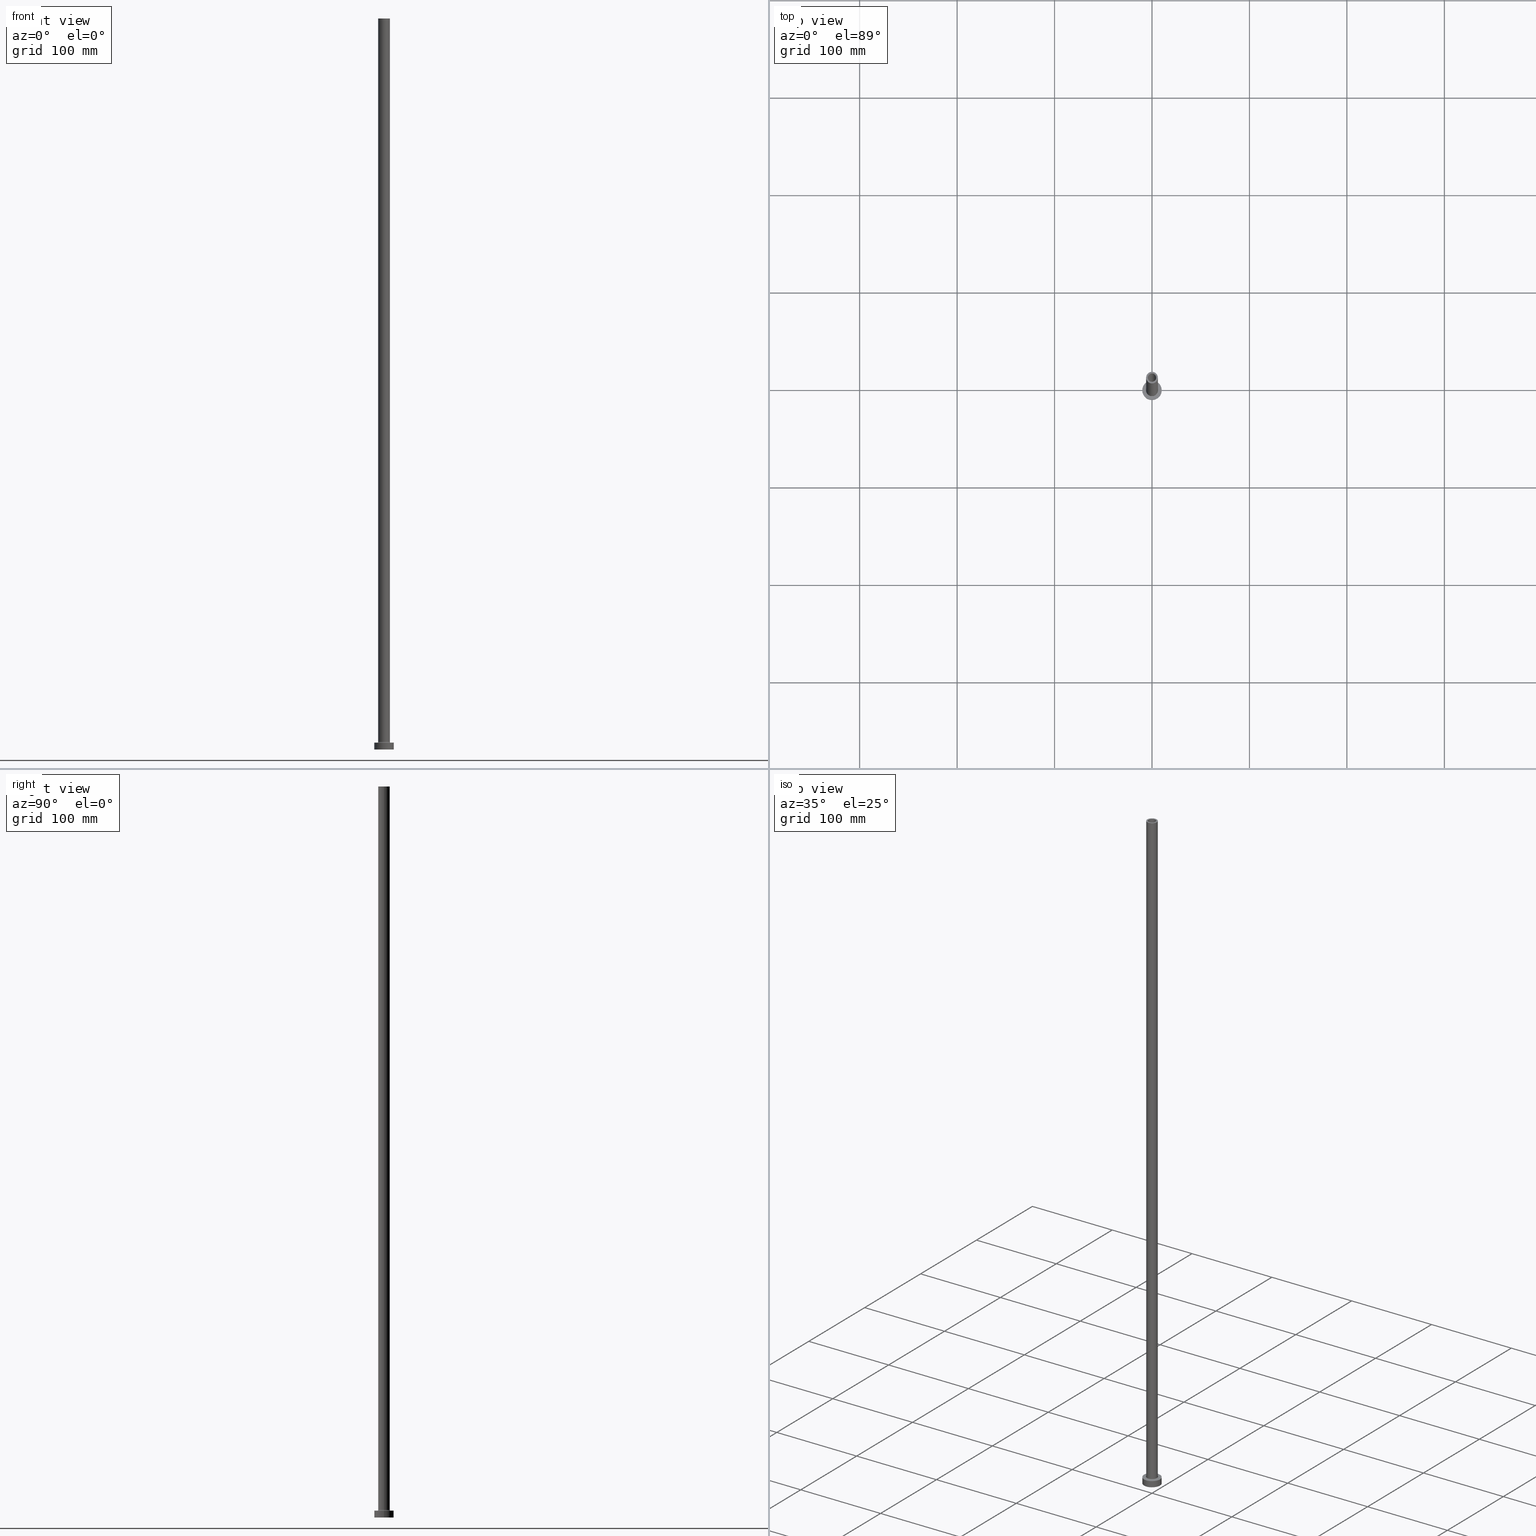
[diagram: canonical four-view strip — front | top / right | iso, engineering-drawing reading convention]
A machine part, canonical four-view strip (front | top / right | iso — engineering-drawing reading convention). The complete STEP part file that produces these views, byte-faithful:
ISO-10303-21;
HEADER;
FILE_DESCRIPTION (( 'STEP AP203' ),
    '1' );
FILE_NAME ('cd4d.STEP',
    '2023-02-13T11:54:27',
    ( '' ),
    ( '' ),
    'SwSTEP 2.0',
    'SolidWorks 2019',
    '' );
FILE_SCHEMA (( 'CONFIG_CONTROL_DESIGN' ));
ENDSEC;

DATA;
#1 = PLANE ( 'NONE',  #199 ) ;
#2 = VECTOR ( 'NONE', #316, 1000.000000000000000 ) ;
#3 = COORDINATED_UNIVERSAL_TIME_OFFSET ( 1, 0, .AHEAD. ) ;
#4 = APPROVAL ( #367, 'NEUR�EN�' ) ;
#5 = ADVANCED_FACE ( 'NONE', ( #47, #359 ), #1, .F. ) ;
#6 = ORIENTED_EDGE ( 'NONE', *, *, #348, .F. ) ;
#7 = ORIENTED_EDGE ( 'NONE', *, *, #178, .F. ) ;
#8 = CYLINDRICAL_SURFACE ( 'NONE', #19, 4.400000000000000355 ) ;
#9 = AXIS2_PLACEMENT_3D ( 'NONE', #429, #134, #90 ) ;
#10 = AXIS2_PLACEMENT_3D ( 'NONE', #300, #272, #407 ) ;
#11 = CARTESIAN_POINT ( 'NONE',  ( -4.250000000000000000, 0.000000000000000000, 705.0000000000000000 ) ) ;
#12 = CC_DESIGN_DATE_AND_TIME_ASSIGNMENT ( #161, #121, ( #200 ) ) ;
#13 = COORDINATED_UNIVERSAL_TIME_OFFSET ( 1, 0, .AHEAD. ) ;
#14 = DIRECTION ( 'NONE',  ( -0.000000000000000000, -0.000000000000000000, -1.000000000000000000 ) ) ;
#15 = VERTEX_POINT ( 'NONE', #293 ) ;
#16 = DIRECTION ( 'NONE',  ( 0.000000000000000000, 0.000000000000000000, 1.000000000000000000 ) ) ;
#17 = EDGE_LOOP ( 'NONE', ( #271, #255 ) ) ;
#18 = CARTESIAN_POINT ( 'NONE',  ( -6.000000000000000888, 0.000000000000000000, 750.0000000000000000 ) ) ;
#19 = AXIS2_PLACEMENT_3D ( 'NONE', #126, #373, #404 ) ;
#20 = DIRECTION ( 'NONE',  ( 0.000000000000000000, 0.000000000000000000, 1.000000000000000000 ) ) ;
#21 = EDGE_CURVE ( 'NONE', #133, #171, #378, .T. ) ;
#22 = ORIENTED_EDGE ( 'NONE', *, *, #250, .T. ) ;
#23 = CYLINDRICAL_SURFACE ( 'NONE', #440, 4.250000000000000000 ) ;
#24 = ORIENTED_EDGE ( 'NONE', *, *, #421, .T. ) ;
#25 =( NAMED_UNIT ( * ) SI_UNIT ( $, .STERADIAN. ) SOLID_ANGLE_UNIT ( ) );
#26 = CARTESIAN_POINT ( 'NONE',  ( 10.00000000000000000, 1.224646799147353256E-15, 0.000000000000000000 ) ) ;
#27 = EDGE_CURVE ( 'NONE', #445, #299, #220, .T. ) ;
#28 = CIRCLE ( 'NONE', #61, 0.7000000000000000666 ) ;
#29 = DIRECTION ( 'NONE',  ( 0.000000000000000000, 0.000000000000000000, -1.000000000000000000 ) ) ;
#30 = DIRECTION ( 'NONE',  ( 0.000000000000000000, 0.000000000000000000, -1.000000000000000000 ) ) ;
#31 = ADVANCED_FACE ( 'NONE', ( #194 ), #335, .T. ) ;
#32 = CARTESIAN_POINT ( 'NONE',  ( 4.400000000000000355, 5.388445916248353027E-16, 717.4450793488832687 ) ) ;
#33 = ADVANCED_BREP_SHAPE_REPRESENTATION ( 'cd4d', ( #95, #66 ), #138 ) ;
#34 = FACE_OUTER_BOUND ( 'NONE', #228, .T. ) ;
#35 = DIRECTION ( 'NONE',  ( 0.000000000000000000, 0.000000000000000000, -1.000000000000000000 ) ) ;
#36 = ORIENTED_EDGE ( 'NONE', *, *, #67, .F. ) ;
#37 = PERSON_AND_ORGANIZATION ( #119, #387 ) ;
#38 = CARTESIAN_POINT ( 'NONE',  ( 0.000000000000000000, 0.000000000000000000, 750.0000000000000000 ) ) ;
#39 = EDGE_LOOP ( 'NONE', ( #74, #290, #105, #113 ) ) ;
#40 = EDGE_CURVE ( 'NONE', #166, #155, #278, .T. ) ;
#41 = PERSON_AND_ORGANIZATION_ROLE ( 'creator' ) ;
#42 = CARTESIAN_POINT ( 'NONE',  ( 0.000000000000000000, 0.000000000000000000, 750.0000000000000000 ) ) ;
#43 = ORIENTED_EDGE ( 'NONE', *, *, #383, .T. ) ;
#44 = CIRCLE ( 'NONE', #87, 6.000000000000000888 ) ;
#45 = DATE_AND_TIME ( #253, #221 ) ;
#46 = PLANE ( 'NONE',  #71 ) ;
#47 = FACE_BOUND ( 'NONE', #17, .T. ) ;
#48 = CARTESIAN_POINT ( 'NONE',  ( 0.000000000000000000, 0.000000000000000000, 0.000000000000000000 ) ) ;
#49 = EDGE_CURVE ( 'NONE', #171, #133, #213, .T. ) ;
#50 = ADVANCED_FACE ( 'NONE', ( #124 ), #386, .F. ) ;
#51 = DIRECTION ( 'NONE',  ( 0.000000000000000000, 0.000000000000000000, 1.000000000000000000 ) ) ;
#52 = AXIS2_PLACEMENT_3D ( 'NONE', #201, #165, #306 ) ;
#53 = SHAPE_DEFINITION_REPRESENTATION ( #313, #33 ) ;
#54 = APPROVAL_PERSON_ORGANIZATION ( #163, #4, #127 ) ;
#55 = CARTESIAN_POINT ( 'NONE',  ( 0.000000000000000000, 0.000000000000000000, 750.0000000000000000 ) ) ;
#56 = FACE_OUTER_BOUND ( 'NONE', #108, .T. ) ;
#57 = CARTESIAN_POINT ( 'NONE',  ( 0.000000000000000000, 0.000000000000000000, 705.0000000000000000 ) ) ;
#58 = ORIENTED_EDGE ( 'NONE', *, *, #348, .T. ) ;
#59 = DIRECTION ( 'NONE',  ( 1.000000000000000000, 0.000000000000000000, 0.000000000000000000 ) ) ;
#60 = ORIENTED_EDGE ( 'NONE', *, *, #99, .T. ) ;
#61 = AXIS2_PLACEMENT_3D ( 'NONE', #411, #132, #273 ) ;
#62 =( NAMED_UNIT ( * ) PLANE_ANGLE_UNIT ( ) SI_UNIT ( $, .RADIAN. ) );
#63 = DIRECTION ( 'NONE',  ( 0.000000000000000000, 0.000000000000000000, -1.000000000000000000 ) ) ;
#64 = CIRCLE ( 'NONE', #69, 4.400000000000000355 ) ;
#65 = CARTESIAN_POINT ( 'NONE',  ( -6.700000000000001066, 8.205133554287267548E-16, 7.000000000000020428 ) ) ;
#66 = AXIS2_PLACEMENT_3D ( 'NONE', #394, #115, #256 ) ;
#67 = EDGE_CURVE ( 'NONE', #238, #166, #351, .T. ) ;
#68 = DIRECTION ( 'NONE',  ( -1.000000000000000000, 0.000000000000000000, 0.000000000000000000 ) ) ;
#69 = AXIS2_PLACEMENT_3D ( 'NONE', #100, #417, #215 ) ;
#70 = ORIENTED_EDGE ( 'NONE', *, *, #388, .F. ) ;
#71 = AXIS2_PLACEMENT_3D ( 'NONE', #38, #73, #185 ) ;
#72 = APPLICATION_PROTOCOL_DEFINITION ( 'international standard', 'config_control_design', 1994, #81 ) ;
#73 = DIRECTION ( 'NONE',  ( 0.000000000000000000, 0.000000000000000000, 1.000000000000000000 ) ) ;
#74 = ORIENTED_EDGE ( 'NONE', *, *, #309, .F. ) ;
#75 = DIRECTION ( 'NONE',  ( 1.000000000000000000, 0.000000000000000000, -0.000000000000000000 ) ) ;
#76 = ORIENTED_EDGE ( 'NONE', *, *, #250, .F. ) ;
#77 = ORIENTED_EDGE ( 'NONE', *, *, #336, .F. ) ;
#78 = COORDINATED_UNIVERSAL_TIME_OFFSET ( 1, 0, .AHEAD. ) ;
#79 = VERTEX_POINT ( 'NONE', #434 ) ;
#80 = APPROVAL_DATE_TIME ( #372, #4 ) ;
#81 = APPLICATION_CONTEXT ( 'configuration controlled 3d designs of mechanical parts and assemblies' ) ;
#82 = DIRECTION ( 'NONE',  ( 1.000000000000000000, 0.000000000000000000, 0.000000000000000000 ) ) ;
#83 = ORIENTED_EDGE ( 'NONE', *, *, #187, .F. ) ;
#84 = SECURITY_CLASSIFICATION_LEVEL ( 'unclassified' ) ;
#85 = CARTESIAN_POINT ( 'NONE',  ( 10.00000000000000000, 1.224646799147353256E-15, 7.000000000000000000 ) ) ;
#86 = DIRECTION ( 'NONE',  ( 1.000000000000000000, 0.000000000000000000, 0.000000000000000000 ) ) ;
#87 = AXIS2_PLACEMENT_3D ( 'NONE', #376, #444, #349 ) ;
#88 = CIRCLE ( 'NONE', #270, 10.00000000000000000 ) ;
#89 = DIRECTION ( 'NONE',  ( 0.000000000000000000, 0.000000000000000000, 1.000000000000000000 ) ) ;
#90 = DIRECTION ( 'NONE',  ( -1.000000000000000000, 0.000000000000000000, 0.000000000000000000 ) ) ;
#91 = ADVANCED_FACE ( 'NONE', ( #205 ), #370, .T. ) ;
#92 = DIRECTION ( 'NONE',  ( 1.000000000000000000, 0.000000000000000000, 0.000000000000000000 ) ) ;
#93 = EDGE_LOOP ( 'NONE', ( #189, #77 ) ) ;
#94 = VERTEX_POINT ( 'NONE', #438 ) ;
#95 = MANIFOLD_SOLID_BREP ( 'Odebrat vysunut�m4', #158 ) ;
#96 = VECTOR ( 'NONE', #379, 1000.000000000000000 ) ;
#97 = EDGE_CURVE ( 'NONE', #79, #252, #455, .T. ) ;
#98 = DIRECTION ( 'NONE',  ( -0.000000000000000000, -0.000000000000000000, -1.000000000000000000 ) ) ;
#99 = EDGE_CURVE ( 'NONE', #192, #155, #28, .T. ) ;
#100 = CARTESIAN_POINT ( 'NONE',  ( 0.000000000000000000, 0.000000000000000000, 705.0000000000000000 ) ) ;
#101 = DIRECTION ( 'NONE',  ( -0.000000000000000000, -0.000000000000000000, -1.000000000000000000 ) ) ;
#102 = CARTESIAN_POINT ( 'NONE',  ( 6.700000000000001066, 0.000000000000000000, 7.000000000000020428 ) ) ;
#103 = CARTESIAN_POINT ( 'NONE',  ( 0.000000000000000000, 0.000000000000000000, 750.0000000000000000 ) ) ;
#104 = LOCAL_TIME ( 12, 54, 27.00000000000000000, #13 ) ;
#105 = ORIENTED_EDGE ( 'NONE', *, *, #187, .T. ) ;
#106 = ADVANCED_FACE ( 'NONE', ( #410 ), #448, .F. ) ;
#107 = CARTESIAN_POINT ( 'NONE',  ( -10.00000000000000000, 0.000000000000000000, 7.000000000000000000 ) ) ;
#108 = EDGE_LOOP ( 'NONE', ( #109, #459, #231, #334 ) ) ;
#109 = ORIENTED_EDGE ( 'NONE', *, *, #122, .T. ) ;
#110 = AXIS2_PLACEMENT_3D ( 'NONE', #343, #20, #169 ) ;
#111 = EDGE_CURVE ( 'NONE', #94, #360, #44, .T. ) ;
#112 = VERTEX_POINT ( 'NONE', #217 ) ;
#113 = ORIENTED_EDGE ( 'NONE', *, *, #125, .T. ) ;
#114 = ORIENTED_EDGE ( 'NONE', *, *, #49, .F. ) ;
#115 = DIRECTION ( 'NONE',  ( 0.000000000000000000, 0.000000000000000000, 1.000000000000000000 ) ) ;
#116 = CYLINDRICAL_SURFACE ( 'NONE', #344, 4.250000000000000000 ) ;
#117 = ORIENTED_EDGE ( 'NONE', *, *, #125, .F. ) ;
#118 = APPROVAL ( #190, 'NEUR�EN�' ) ;
#119 = PERSON ( 'NEUR�EN�', 'NEUR�EN�', 'NEUR�EN�', ('NEUR�EN�'), ('NEUR�EN�'), ('NEUR�EN�') ) ;
#120 = AXIS2_PLACEMENT_3D ( 'NONE', #436, #123, #128 ) ;
#121 = DATE_TIME_ROLE ( 'classification_date' ) ;
#122 = EDGE_CURVE ( 'NONE', #252, #79, #64, .T. ) ;
#123 = DIRECTION ( 'NONE',  ( 0.000000000000000000, 0.000000000000000000, -1.000000000000000000 ) ) ;
#124 = FACE_OUTER_BOUND ( 'NONE', #276, .T. ) ;
#125 = EDGE_CURVE ( 'NONE', #203, #167, #430, .T. ) ;
#126 = CARTESIAN_POINT ( 'NONE',  ( 0.000000000000000000, 0.000000000000000000, 717.4450793488832687 ) ) ;
#127 = APPROVAL_ROLE ( '' ) ;
#128 = DIRECTION ( 'NONE',  ( -1.000000000000000000, 0.000000000000000000, 0.000000000000000000 ) ) ;
#129 = ORIENTED_EDGE ( 'NONE', *, *, #97, .T. ) ;
#130 = AXIS2_PLACEMENT_3D ( 'NONE', #314, #242, #451 ) ;
#131 = CIRCLE ( 'NONE', #10, 4.400000000000000355 ) ;
#132 = DIRECTION ( 'NONE',  ( 1.224646799147353207E-16, 1.000000000000000000, -0.000000000000000000 ) ) ;
#133 = VERTEX_POINT ( 'NONE', #172 ) ;
#134 = DIRECTION ( 'NONE',  ( -0.000000000000000000, -0.000000000000000000, -1.000000000000000000 ) ) ;
#135 = CC_DESIGN_DATE_AND_TIME_ASSIGNMENT ( #326, #260, ( #285 ) ) ;
#136 = EDGE_CURVE ( 'NONE', #15, #299, #414, .T. ) ;
#137 = LINE ( 'NONE', #32, #2 ) ;
#138 =( GEOMETRIC_REPRESENTATION_CONTEXT ( 3 ) GLOBAL_UNCERTAINTY_ASSIGNED_CONTEXT ( ( #437 ) ) GLOBAL_UNIT_ASSIGNED_CONTEXT ( ( #315, #62, #25 ) ) REPRESENTATION_CONTEXT ( 'NONE', 'WORKASPACE' ) );
#139 = LINE ( 'NONE', #107, #96 ) ;
#140 = FACE_OUTER_BOUND ( 'NONE', #419, .T. ) ;
#141 = DIRECTION ( 'NONE',  ( -0.000000000000000000, -0.000000000000000000, -1.000000000000000000 ) ) ;
#142 = DATE_AND_TIME ( #391, #193 ) ;
#143 = AXIS2_PLACEMENT_3D ( 'NONE', #457, #362, #427 ) ;
#144 = LINE ( 'NONE', #241, #246 ) ;
#145 = AXIS2_PLACEMENT_3D ( 'NONE', #156, #14, #164 ) ;
#146 = APPLICATION_PROTOCOL_DEFINITION ( 'international standard', 'config_control_design', 1994, #292 ) ;
#147 = DIRECTION ( 'NONE',  ( 0.000000000000000000, 0.000000000000000000, 1.000000000000000000 ) ) ;
#148 = ORIENTED_EDGE ( 'NONE', *, *, #27, .F. ) ;
#149 = AXIS2_PLACEMENT_3D ( 'NONE', #369, #338, #303 ) ;
#150 = CARTESIAN_POINT ( 'NONE',  ( 0.000000000000000000, 0.000000000000000000, 705.0000000000000000 ) ) ;
#151 = CIRCLE ( 'NONE', #291, 4.250000000000000000 ) ;
#152 = CALENDAR_DATE ( 2023, 13, 2 ) ;
#153 = EDGE_LOOP ( 'NONE', ( #289, #60, #229, #36 ) ) ;
#154 = PERSON_AND_ORGANIZATION ( #119, #387 ) ;
#155 = VERTEX_POINT ( 'NONE', #65 ) ;
#156 = CARTESIAN_POINT ( 'NONE',  ( 0.000000000000000000, 0.000000000000000000, 7.000000000000000000 ) ) ;
#157 = CARTESIAN_POINT ( 'NONE',  ( 0.000000000000000000, 0.000000000000000000, 7.000000000000000000 ) ) ;
#158 = CLOSED_SHELL ( 'NONE', ( #244, #323, #106, #275, #447, #31, #296, #258, #91, #302, #50, #446, #5, #304 ) ) ;
#159 = CIRCLE ( 'NONE', #425, 6.000000000000000888 ) ;
#160 = PRODUCT ( 'cd4d', 'cd4d', '', ( #181 ) ) ;
#161 = DATE_AND_TIME ( #398, #104 ) ;
#162 = DIRECTION ( 'NONE',  ( 1.000000000000000000, 0.000000000000000000, 0.000000000000000000 ) ) ;
#163 = PERSON_AND_ORGANIZATION ( #119, #387 ) ;
#164 = DIRECTION ( 'NONE',  ( 1.000000000000000000, 0.000000000000000000, 0.000000000000000000 ) ) ;
#165 = DIRECTION ( 'NONE',  ( -0.000000000000000000, -0.000000000000000000, -1.000000000000000000 ) ) ;
#166 = VERTEX_POINT ( 'NONE', #102 ) ;
#167 = VERTEX_POINT ( 'NONE', #26 ) ;
#168 = DIRECTION ( 'NONE',  ( -0.000000000000000000, -0.000000000000000000, -1.000000000000000000 ) ) ;
#169 = DIRECTION ( 'NONE',  ( 1.000000000000000000, 0.000000000000000000, 0.000000000000000000 ) ) ;
#170 = CC_DESIGN_PERSON_AND_ORGANIZATION_ASSIGNMENT ( #356, #219, ( #160 ) ) ;
#171 = VERTEX_POINT ( 'NONE', #208 ) ;
#172 = CARTESIAN_POINT ( 'NONE',  ( -10.00000000000000000, 0.000000000000000000, 7.000000000000000000 ) ) ;
#173 = EDGE_LOOP ( 'NONE', ( #240, #390, #295, #327 ) ) ;
#174 = CARTESIAN_POINT ( 'NONE',  ( -10.00000000000000000, 0.000000000000000000, 0.000000000000000000 ) ) ;
#175 = AXIS2_PLACEMENT_3D ( 'NONE', #248, #418, #211 ) ;
#176 = CIRCLE ( 'NONE', #145, 6.700000000000001066 ) ;
#177 = DIRECTION ( 'NONE',  ( 0.000000000000000000, 0.000000000000000000, 1.000000000000000000 ) ) ;
#178 = EDGE_CURVE ( 'NONE', #360, #192, #354, .T. ) ;
#179 = LINE ( 'NONE', #384, #191 ) ;
#180 = PLANE ( 'NONE',  #355 ) ;
#181 = MECHANICAL_CONTEXT ( 'NONE', #292, 'mechanical' ) ;
#182 = AXIS2_PLACEMENT_3D ( 'NONE', #357, #147, #395 ) ;
#183 = ORIENTED_EDGE ( 'NONE', *, *, #111, .T. ) ;
#184 = PERSON_AND_ORGANIZATION_ROLE ( 'creator' ) ;
#185 = DIRECTION ( 'NONE',  ( 1.000000000000000000, 0.000000000000000000, -0.000000000000000000 ) ) ;
#186 = DIRECTION ( 'NONE',  ( 1.000000000000000000, 0.000000000000000000, -0.000000000000000000 ) ) ;
#187 = EDGE_CURVE ( 'NONE', #133, #203, #139, .T. ) ;
#188 = PERSON_AND_ORGANIZATION ( #119, #387 ) ;
#189 = ORIENTED_EDGE ( 'NONE', *, *, #319, .F. ) ;
#190 = APPROVAL_STATUS ( 'not_yet_approved' ) ;
#191 = VECTOR ( 'NONE', #245, 1000.000000000000000 ) ;
#192 = VERTEX_POINT ( 'NONE', #345 ) ;
#193 = LOCAL_TIME ( 12, 54, 27.00000000000000000, #420 ) ;
#194 = FACE_OUTER_BOUND ( 'NONE', #39, .T. ) ;
#195 = PERSON_AND_ORGANIZATION_ROLE ( 'design_supplier' ) ;
#196 = CARTESIAN_POINT ( 'NONE',  ( 4.400000000000000355, 5.388445916248353027E-16, 0.000000000000000000 ) ) ;
#197 = DIRECTION ( 'NONE',  ( 1.000000000000000000, 0.000000000000000000, 0.000000000000000000 ) ) ;
#198 = DESIGN_CONTEXT ( 'detailed design', #81, 'design' ) ;
#199 = AXIS2_PLACEMENT_3D ( 'NONE', #150, #325, #186 ) ;
#200 = SECURITY_CLASSIFICATION ( '', '', #84 ) ;
#201 = CARTESIAN_POINT ( 'NONE',  ( 0.000000000000000000, 0.000000000000000000, 750.0000000000000000 ) ) ;
#202 = CARTESIAN_POINT ( 'NONE',  ( 0.000000000000000000, 0.000000000000000000, 7.700000000000040146 ) ) ;
#203 = VERTEX_POINT ( 'NONE', #174 ) ;
#204 = CARTESIAN_POINT ( 'NONE',  ( 0.000000000000000000, 0.000000000000000000, 7.700000000000040146 ) ) ;
#205 = FACE_OUTER_BOUND ( 'NONE', #173, .T. ) ;
#206 = ORIENTED_EDGE ( 'NONE', *, *, #40, .T. ) ;
#207 = CC_DESIGN_SECURITY_CLASSIFICATION ( #200, ( #442 ) ) ;
#208 = CARTESIAN_POINT ( 'NONE',  ( 10.00000000000000000, 1.224646799147353256E-15, 7.000000000000000000 ) ) ;
#209 = EDGE_CURVE ( 'NONE', #79, #396, #137, .T. ) ;
#210 = ORIENTED_EDGE ( 'NONE', *, *, #99, .F. ) ;
#211 = DIRECTION ( 'NONE',  ( 1.000000000000000000, 0.000000000000000000, 0.000000000000000000 ) ) ;
#212 = FACE_OUTER_BOUND ( 'NONE', #261, .T. ) ;
#213 = CIRCLE ( 'NONE', #332, 10.00000000000000000 ) ;
#214 = CIRCLE ( 'NONE', #324, 6.000000000000000888 ) ;
#215 = DIRECTION ( 'NONE',  ( 1.000000000000000000, 0.000000000000000000, 0.000000000000000000 ) ) ;
#216 = EDGE_CURVE ( 'NONE', #312, #15, #269, .T. ) ;
#217 = CARTESIAN_POINT ( 'NONE',  ( -4.400000000000000355, 0.000000000000000000, 0.000000000000000000 ) ) ;
#218 = APPROVAL ( #328, 'NEUR�EN�' ) ;
#219 = PERSON_AND_ORGANIZATION_ROLE ( 'design_owner' ) ;
#220 = CIRCLE ( 'NONE', #182, 4.250000000000000000 ) ;
#221 = LOCAL_TIME ( 12, 54, 27.00000000000000000, #78 ) ;
#222 = ORIENTED_EDGE ( 'NONE', *, *, #21, .T. ) ;
#223 = ORIENTED_EDGE ( 'NONE', *, *, #111, .F. ) ;
#224 = ORIENTED_EDGE ( 'NONE', *, *, #136, .F. ) ;
#225 = PERSON_AND_ORGANIZATION ( #119, #387 ) ;
#226 = EDGE_CURVE ( 'NONE', #94, #238, #179, .T. ) ;
#227 = AXIS2_PLACEMENT_3D ( 'NONE', #453, #141, #68 ) ;
#228 = EDGE_LOOP ( 'NONE', ( #222, #381 ) ) ;
#229 = ORIENTED_EDGE ( 'NONE', *, *, #40, .F. ) ;
#230 = DIRECTION ( 'NONE',  ( 0.000000000000000000, 0.000000000000000000, 1.000000000000000000 ) ) ;
#231 = ORIENTED_EDGE ( 'NONE', *, *, #336, .T. ) ;
#232 = CC_DESIGN_PERSON_AND_ORGANIZATION_ASSIGNMENT ( #435, #195, ( #442 ) ) ;
#233 = DIRECTION ( 'NONE',  ( 1.000000000000000000, 0.000000000000000000, 0.000000000000000000 ) ) ;
#234 = AXIS2_PLACEMENT_3D ( 'NONE', #157, #405, #268 ) ;
#235 = CALENDAR_DATE ( 2023, 13, 2 ) ;
#236 = ORIENTED_EDGE ( 'NONE', *, *, #136, .T. ) ;
#237 = CARTESIAN_POINT ( 'NONE',  ( 0.000000000000000000, 0.000000000000000000, 750.0000000000000000 ) ) ;
#238 = VERTEX_POINT ( 'NONE', #320 ) ;
#239 = DIRECTION ( 'NONE',  ( 0.000000000000000000, 0.000000000000000000, 1.000000000000000000 ) ) ;
#240 = ORIENTED_EDGE ( 'NONE', *, *, #226, .F. ) ;
#241 = CARTESIAN_POINT ( 'NONE',  ( -4.250000000000000000, 0.000000000000000000, 750.0000000000000000 ) ) ;
#242 = DIRECTION ( 'NONE',  ( 0.000000000000000000, 0.000000000000000000, 1.000000000000000000 ) ) ;
#243 = CC_DESIGN_PERSON_AND_ORGANIZATION_ASSIGNMENT ( #154, #298, ( #200 ) ) ;
#244 = ADVANCED_FACE ( 'NONE', ( #353 ), #23, .F. ) ;
#245 = DIRECTION ( 'NONE',  ( -0.000000000000000000, -0.000000000000000000, -1.000000000000000000 ) ) ;
#246 = VECTOR ( 'NONE', #389, 1000.000000000000000 ) ;
#247 = APPROVAL_PERSON_ORGANIZATION ( #288, #118, #331 ) ;
#248 = CARTESIAN_POINT ( 'NONE',  ( 0.000000000000000000, 0.000000000000000000, 0.000000000000000000 ) ) ;
#249 = ORIENTED_EDGE ( 'NONE', *, *, #388, .T. ) ;
#250 = EDGE_CURVE ( 'NONE', #312, #445, #144, .T. ) ;
#251 = EDGE_LOOP ( 'NONE', ( #206, #24 ) ) ;
#252 = VERTEX_POINT ( 'NONE', #277 ) ;
#253 = CALENDAR_DATE ( 2023, 13, 2 ) ;
#254 = VECTOR ( 'NONE', #29, 1000.000000000000000 ) ;
#255 = ORIENTED_EDGE ( 'NONE', *, *, #365, .T. ) ;
#256 = DIRECTION ( 'NONE',  ( 1.000000000000000000, 0.000000000000000000, 0.000000000000000000 ) ) ;
#257 = EDGE_LOOP ( 'NONE', ( #43, #183 ) ) ;
#258 = ADVANCED_FACE ( 'NONE', ( #416, #212 ), #382, .F. ) ;
#259 = ORIENTED_EDGE ( 'NONE', *, *, #309, .T. ) ;
#260 = DATE_TIME_ROLE ( 'creation_date' ) ;
#261 = EDGE_LOOP ( 'NONE', ( #117, #6 ) ) ;
#262 = ORIENTED_EDGE ( 'NONE', *, *, #226, .T. ) ;
#263 = AXIS2_PLACEMENT_3D ( 'NONE', #57, #16, #307 ) ;
#264 = AXIS2_PLACEMENT_3D ( 'NONE', #433, #305, #233 ) ;
#265 = EDGE_LOOP ( 'NONE', ( #401, #129, #341, #428 ) ) ;
#266 = CC_DESIGN_PERSON_AND_ORGANIZATION_ASSIGNMENT ( #37, #184, ( #442 ) ) ;
#267 = DIRECTION ( 'NONE',  ( 0.000000000000000000, 0.000000000000000000, 1.000000000000000000 ) ) ;
#268 = DIRECTION ( 'NONE',  ( 1.000000000000000000, 0.000000000000000000, 0.000000000000000000 ) ) ;
#269 = CIRCLE ( 'NONE', #130, 4.250000000000000000 ) ;
#270 = AXIS2_PLACEMENT_3D ( 'NONE', #342, #89, #162 ) ;
#271 = ORIENTED_EDGE ( 'NONE', *, *, #27, .T. ) ;
#272 = DIRECTION ( 'NONE',  ( -0.000000000000000000, -0.000000000000000000, -1.000000000000000000 ) ) ;
#273 = DIRECTION ( 'NONE',  ( -1.000000000000000000, 1.224646799147353454E-16, 0.000000000000000000 ) ) ;
#274 = EDGE_LOOP ( 'NONE', ( #340, #366 ) ) ;
#275 = ADVANCED_FACE ( 'NONE', ( #140 ), #283, .T. ) ;
#276 = EDGE_LOOP ( 'NONE', ( #210, #70, #392, #287 ) ) ;
#277 = CARTESIAN_POINT ( 'NONE',  ( -4.400000000000000355, 0.000000000000000000, 705.0000000000000000 ) ) ;
#278 = CIRCLE ( 'NONE', #234, 6.700000000000001066 ) ;
#279 = AXIS2_PLACEMENT_3D ( 'NONE', #204, #267, #92 ) ;
#280 = LINE ( 'NONE', #452, #399 ) ;
#281 = CARTESIAN_POINT ( 'NONE',  ( 4.250000000000000000, 5.204748896376250699E-16, 750.0000000000000000 ) ) ;
#282 = CARTESIAN_POINT ( 'NONE',  ( 0.000000000000000000, 0.000000000000000000, 7.000000000000000000 ) ) ;
#283 = CYLINDRICAL_SURFACE ( 'NONE', #227, 6.000000000000000888 ) ;
#284 = FACE_BOUND ( 'NONE', #251, .T. ) ;
#285 = PRODUCT_DEFINITION ( 'NEZN�M�', '', #442, #198 ) ;
#286 = APPROVAL_DATE_TIME ( #142, #218 ) ;
#287 = ORIENTED_EDGE ( 'NONE', *, *, #421, .F. ) ;
#288 = PERSON_AND_ORGANIZATION ( #119, #387 ) ;
#289 = ORIENTED_EDGE ( 'NONE', *, *, #329, .F. ) ;
#290 = ORIENTED_EDGE ( 'NONE', *, *, #21, .F. ) ;
#291 = AXIS2_PLACEMENT_3D ( 'NONE', #237, #375, #59 ) ;
#292 = APPLICATION_CONTEXT ( 'configuration controlled 3d designs of mechanical parts and assemblies' ) ;
#293 = CARTESIAN_POINT ( 'NONE',  ( 4.250000000000000000, 5.204748896376250699E-16, 750.0000000000000000 ) ) ;
#294 = FACE_OUTER_BOUND ( 'NONE', #424, .T. ) ;
#295 = ORIENTED_EDGE ( 'NONE', *, *, #178, .T. ) ;
#296 = ADVANCED_FACE ( 'NONE', ( #284, #34 ), #180, .T. ) ;
#297 = ORIENTED_EDGE ( 'NONE', *, *, #97, .F. ) ;
#298 = PERSON_AND_ORGANIZATION_ROLE ( 'classification_officer' ) ;
#299 = VERTEX_POINT ( 'NONE', #422 ) ;
#300 = CARTESIAN_POINT ( 'NONE',  ( 0.000000000000000000, 0.000000000000000000, 0.000000000000000000 ) ) ;
#301 = APPROVAL_PERSON_ORGANIZATION ( #188, #218, #321 ) ;
#302 = ADVANCED_FACE ( 'NONE', ( #461, #423 ), #46, .T. ) ;
#303 = DIRECTION ( 'NONE',  ( 0.000000000000000000, 0.000000000000000000, -1.000000000000000000 ) ) ;
#304 = ADVANCED_FACE ( 'NONE', ( #294 ), #116, .F. ) ;
#305 = DIRECTION ( 'NONE',  ( 0.000000000000000000, 0.000000000000000000, 1.000000000000000000 ) ) ;
#306 = DIRECTION ( 'NONE',  ( -1.000000000000000000, 0.000000000000000000, 0.000000000000000000 ) ) ;
#307 = DIRECTION ( 'NONE',  ( 1.000000000000000000, 0.000000000000000000, 0.000000000000000000 ) ) ;
#308 = AXIS2_PLACEMENT_3D ( 'NONE', #350, #177, #454 ) ;
#309 = EDGE_CURVE ( 'NONE', #171, #167, #441, .T. ) ;
#310 = CC_DESIGN_APPROVAL ( #218, ( #442 ) ) ;
#311 = CARTESIAN_POINT ( 'NONE',  ( -4.250000000000000000, 0.000000000000000000, 750.0000000000000000 ) ) ;
#312 = VERTEX_POINT ( 'NONE', #311 ) ;
#313 = PRODUCT_DEFINITION_SHAPE ( 'NONE', 'NONE',  #285 ) ;
#314 = CARTESIAN_POINT ( 'NONE',  ( 0.000000000000000000, 0.000000000000000000, 750.0000000000000000 ) ) ;
#315 =( LENGTH_UNIT ( ) NAMED_UNIT ( * ) SI_UNIT ( .MILLI., .METRE. ) );
#316 = DIRECTION ( 'NONE',  ( 0.000000000000000000, 0.000000000000000000, -1.000000000000000000 ) ) ;
#317 = AXIS2_PLACEMENT_3D ( 'NONE', #202, #239, #403 ) ;
#318 = CC_DESIGN_APPROVAL ( #4, ( #200 ) ) ;
#319 = EDGE_CURVE ( 'NONE', #112, #396, #131, .T. ) ;
#320 = CARTESIAN_POINT ( 'NONE',  ( 6.000000000000000888, 7.347880794884119736E-16, 7.700000000000040146 ) ) ;
#321 = APPROVAL_ROLE ( '' ) ;
#322 = CARTESIAN_POINT ( 'NONE',  ( 0.000000000000000000, 0.000000000000000000, 7.000000000000000000 ) ) ;
#323 = ADVANCED_FACE ( 'NONE', ( #56 ), #8, .F. ) ;
#324 = AXIS2_PLACEMENT_3D ( 'NONE', #339, #230, #197 ) ;
#325 = DIRECTION ( 'NONE',  ( 0.000000000000000000, 0.000000000000000000, 1.000000000000000000 ) ) ;
#326 = DATE_AND_TIME ( #152, #393 ) ;
#327 = ORIENTED_EDGE ( 'NONE', *, *, #329, .T. ) ;
#328 = APPROVAL_STATUS ( 'not_yet_approved' ) ;
#329 = EDGE_CURVE ( 'NONE', #192, #238, #337, .T. ) ;
#330 = ORIENTED_EDGE ( 'NONE', *, *, #365, .F. ) ;
#331 = APPROVAL_ROLE ( '' ) ;
#332 = AXIS2_PLACEMENT_3D ( 'NONE', #374, #443, #86 ) ;
#333 = AXIS2_PLACEMENT_3D ( 'NONE', #282, #98, #415 ) ;
#334 = ORIENTED_EDGE ( 'NONE', *, *, #458, .F. ) ;
#335 = CYLINDRICAL_SURFACE ( 'NONE', #9, 10.00000000000000000 ) ;
#336 = EDGE_CURVE ( 'NONE', #396, #112, #450, .T. ) ;
#337 = CIRCLE ( 'NONE', #279, 6.000000000000000888 ) ;
#338 = DIRECTION ( 'NONE',  ( 0.000000000000000000, -1.000000000000000000, 0.000000000000000000 ) ) ;
#339 = CARTESIAN_POINT ( 'NONE',  ( 0.000000000000000000, 0.000000000000000000, 7.700000000000040146 ) ) ;
#340 = ORIENTED_EDGE ( 'NONE', *, *, #216, .F. ) ;
#341 = ORIENTED_EDGE ( 'NONE', *, *, #458, .T. ) ;
#342 = CARTESIAN_POINT ( 'NONE',  ( 0.000000000000000000, 0.000000000000000000, 0.000000000000000000 ) ) ;
#343 = CARTESIAN_POINT ( 'NONE',  ( 0.000000000000000000, 0.000000000000000000, 7.700000000000040146 ) ) ;
#344 = AXIS2_PLACEMENT_3D ( 'NONE', #42, #35, #364 ) ;
#345 = CARTESIAN_POINT ( 'NONE',  ( -6.000000000000000888, 0.000000000000000000, 7.700000000000040146 ) ) ;
#346 = EDGE_CURVE ( 'NONE', #15, #312, #151, .T. ) ;
#347 = EDGE_LOOP ( 'NONE', ( #371, #297 ) ) ;
#348 = EDGE_CURVE ( 'NONE', #167, #203, #88, .T. ) ;
#349 = DIRECTION ( 'NONE',  ( 1.000000000000000000, 0.000000000000000000, 0.000000000000000000 ) ) ;
#350 = CARTESIAN_POINT ( 'NONE',  ( 0.000000000000000000, 0.000000000000000000, 0.000000000000000000 ) ) ;
#351 = CIRCLE ( 'NONE', #149, 0.7000000000000000666 ) ;
#352 = AXIS2_PLACEMENT_3D ( 'NONE', #48, #368, #400 ) ;
#353 = FACE_OUTER_BOUND ( 'NONE', #358, .T. ) ;
#354 = LINE ( 'NONE', #449, #406 ) ;
#355 = AXIS2_PLACEMENT_3D ( 'NONE', #322, #426, #75 ) ;
#356 = PERSON_AND_ORGANIZATION ( #119, #387 ) ;
#357 = CARTESIAN_POINT ( 'NONE',  ( 0.000000000000000000, 0.000000000000000000, 705.0000000000000000 ) ) ;
#358 = EDGE_LOOP ( 'NONE', ( #409, #236, #148, #76 ) ) ;
#359 = FACE_OUTER_BOUND ( 'NONE', #347, .T. ) ;
#360 = VERTEX_POINT ( 'NONE', #18 ) ;
#361 = LOCAL_TIME ( 12, 54, 27.00000000000000000, #431 ) ;
#362 = DIRECTION ( 'NONE',  ( 0.000000000000000000, 0.000000000000000000, 1.000000000000000000 ) ) ;
#363 = PRODUCT_RELATED_PRODUCT_CATEGORY ( 'detail', '', ( #160 ) ) ;
#364 = DIRECTION ( 'NONE',  ( -1.000000000000000000, 0.000000000000000000, 0.000000000000000000 ) ) ;
#365 = EDGE_CURVE ( 'NONE', #299, #445, #408, .T. ) ;
#366 = ORIENTED_EDGE ( 'NONE', *, *, #346, .F. ) ;
#367 = APPROVAL_STATUS ( 'not_yet_approved' ) ;
#368 = DIRECTION ( 'NONE',  ( -0.000000000000000000, -0.000000000000000000, -1.000000000000000000 ) ) ;
#369 = CARTESIAN_POINT ( 'NONE',  ( 6.700000000000001066, 0.000000000000000000, 7.700000000000040146 ) ) ;
#370 = CYLINDRICAL_SURFACE ( 'NONE', #52, 6.000000000000000888 ) ;
#371 = ORIENTED_EDGE ( 'NONE', *, *, #122, .F. ) ;
#372 = DATE_AND_TIME ( #235, #361 ) ;
#373 = DIRECTION ( 'NONE',  ( 0.000000000000000000, 0.000000000000000000, -1.000000000000000000 ) ) ;
#374 = CARTESIAN_POINT ( 'NONE',  ( 0.000000000000000000, 0.000000000000000000, 7.000000000000000000 ) ) ;
#375 = DIRECTION ( 'NONE',  ( 0.000000000000000000, 0.000000000000000000, 1.000000000000000000 ) ) ;
#376 = CARTESIAN_POINT ( 'NONE',  ( 0.000000000000000000, 0.000000000000000000, 750.0000000000000000 ) ) ;
#377 = CC_DESIGN_PERSON_AND_ORGANIZATION_ASSIGNMENT ( #225, #41, ( #285 ) ) ;
#378 = CIRCLE ( 'NONE', #143, 10.00000000000000000 ) ;
#379 = DIRECTION ( 'NONE',  ( -0.000000000000000000, -0.000000000000000000, -1.000000000000000000 ) ) ;
#380 = CC_DESIGN_APPROVAL ( #118, ( #285 ) ) ;
#381 = ORIENTED_EDGE ( 'NONE', *, *, #49, .T. ) ;
#382 = PLANE ( 'NONE',  #308 ) ;
#383 = EDGE_CURVE ( 'NONE', #360, #94, #159, .T. ) ;
#384 = CARTESIAN_POINT ( 'NONE',  ( 6.000000000000000888, 7.347880794884119736E-16, 750.0000000000000000 ) ) ;
#385 = CYLINDRICAL_SURFACE ( 'NONE', #333, 10.00000000000000000 ) ;
#386 = TOROIDAL_SURFACE ( 'NONE', #317, 6.700000000000001066, 0.6999999999999999556 ) ;
#387 = ORGANIZATION ( 'NEUR�EN�', 'NEUR�EN�', '' ) ;
#388 = EDGE_CURVE ( 'NONE', #238, #192, #214, .T. ) ;
#389 = DIRECTION ( 'NONE',  ( 0.000000000000000000, 0.000000000000000000, -1.000000000000000000 ) ) ;
#390 = ORIENTED_EDGE ( 'NONE', *, *, #383, .F. ) ;
#391 = CALENDAR_DATE ( 2023, 13, 2 ) ;
#392 = ORIENTED_EDGE ( 'NONE', *, *, #67, .T. ) ;
#393 = LOCAL_TIME ( 12, 54, 27.00000000000000000, #3 ) ;
#394 = CARTESIAN_POINT ( 'NONE',  ( 0.000000000000000000, 0.000000000000000000, 0.000000000000000000 ) ) ;
#395 = DIRECTION ( 'NONE',  ( 1.000000000000000000, 0.000000000000000000, 0.000000000000000000 ) ) ;
#396 = VERTEX_POINT ( 'NONE', #196 ) ;
#397 = EDGE_LOOP ( 'NONE', ( #114, #259, #58, #83 ) ) ;
#398 = CALENDAR_DATE ( 2023, 13, 2 ) ;
#399 = VECTOR ( 'NONE', #30, 1000.000000000000000 ) ;
#400 = DIRECTION ( 'NONE',  ( 1.000000000000000000, 0.000000000000000000, 0.000000000000000000 ) ) ;
#401 = ORIENTED_EDGE ( 'NONE', *, *, #209, .F. ) ;
#402 = CYLINDRICAL_SURFACE ( 'NONE', #120, 4.400000000000000355 ) ;
#403 = DIRECTION ( 'NONE',  ( 1.000000000000000000, 0.000000000000000000, 0.000000000000000000 ) ) ;
#404 = DIRECTION ( 'NONE',  ( -1.000000000000000000, 0.000000000000000000, 0.000000000000000000 ) ) ;
#405 = DIRECTION ( 'NONE',  ( -0.000000000000000000, -0.000000000000000000, -1.000000000000000000 ) ) ;
#406 = VECTOR ( 'NONE', #101, 1000.000000000000000 ) ;
#407 = DIRECTION ( 'NONE',  ( 1.000000000000000000, 0.000000000000000000, 0.000000000000000000 ) ) ;
#408 = CIRCLE ( 'NONE', #264, 4.250000000000000000 ) ;
#409 = ORIENTED_EDGE ( 'NONE', *, *, #216, .T. ) ;
#410 = FACE_OUTER_BOUND ( 'NONE', #153, .T. ) ;
#411 = CARTESIAN_POINT ( 'NONE',  ( -6.700000000000001066, 8.205133554287267548E-16, 7.700000000000040146 ) ) ;
#412 = FACE_OUTER_BOUND ( 'NONE', #397, .T. ) ;
#413 = DIRECTION ( 'NONE',  ( -1.000000000000000000, 0.000000000000000000, 0.000000000000000000 ) ) ;
#414 = LINE ( 'NONE', #281, #254 ) ;
#415 = DIRECTION ( 'NONE',  ( -1.000000000000000000, 0.000000000000000000, 0.000000000000000000 ) ) ;
#416 = FACE_BOUND ( 'NONE', #93, .T. ) ;
#417 = DIRECTION ( 'NONE',  ( 0.000000000000000000, 0.000000000000000000, 1.000000000000000000 ) ) ;
#418 = DIRECTION ( 'NONE',  ( 0.000000000000000000, 0.000000000000000000, 1.000000000000000000 ) ) ;
#419 = EDGE_LOOP ( 'NONE', ( #223, #262, #249, #7 ) ) ;
#420 = COORDINATED_UNIVERSAL_TIME_OFFSET ( 1, 0, .AHEAD. ) ;
#421 = EDGE_CURVE ( 'NONE', #155, #166, #176, .T. ) ;
#422 = CARTESIAN_POINT ( 'NONE',  ( 4.250000000000000000, 5.204748896376250699E-16, 705.0000000000000000 ) ) ;
#423 = FACE_OUTER_BOUND ( 'NONE', #257, .T. ) ;
#424 = EDGE_LOOP ( 'NONE', ( #224, #439, #22, #330 ) ) ;
#425 = AXIS2_PLACEMENT_3D ( 'NONE', #55, #51, #82 ) ;
#426 = DIRECTION ( 'NONE',  ( 0.000000000000000000, 0.000000000000000000, 1.000000000000000000 ) ) ;
#427 = DIRECTION ( 'NONE',  ( 1.000000000000000000, 0.000000000000000000, 0.000000000000000000 ) ) ;
#428 = ORIENTED_EDGE ( 'NONE', *, *, #319, .T. ) ;
#429 = CARTESIAN_POINT ( 'NONE',  ( 0.000000000000000000, 0.000000000000000000, 7.000000000000000000 ) ) ;
#430 = CIRCLE ( 'NONE', #175, 10.00000000000000000 ) ;
#431 = COORDINATED_UNIVERSAL_TIME_OFFSET ( 1, 0, .AHEAD. ) ;
#432 = FACE_OUTER_BOUND ( 'NONE', #265, .T. ) ;
#433 = CARTESIAN_POINT ( 'NONE',  ( 0.000000000000000000, 0.000000000000000000, 705.0000000000000000 ) ) ;
#434 = CARTESIAN_POINT ( 'NONE',  ( 4.400000000000000355, 5.388445916248353027E-16, 705.0000000000000000 ) ) ;
#435 = PERSON_AND_ORGANIZATION ( #119, #387 ) ;
#436 = CARTESIAN_POINT ( 'NONE',  ( 0.000000000000000000, 0.000000000000000000, 717.4450793488832687 ) ) ;
#437 = UNCERTAINTY_MEASURE_WITH_UNIT (LENGTH_MEASURE( 1.000000000000000082E-05 ), #315, 'distance_accuracy_value', 'NONE');
#438 = CARTESIAN_POINT ( 'NONE',  ( 6.000000000000000888, 7.347880794884119736E-16, 750.0000000000000000 ) ) ;
#439 = ORIENTED_EDGE ( 'NONE', *, *, #346, .T. ) ;
#440 = AXIS2_PLACEMENT_3D ( 'NONE', #103, #63, #413 ) ;
#441 = LINE ( 'NONE', #85, #456 ) ;
#442 = PRODUCT_DEFINITION_FORMATION_WITH_SPECIFIED_SOURCE ( 'LIBOVOLN�', '', #160, .NOT_KNOWN. ) ;
#443 = DIRECTION ( 'NONE',  ( 0.000000000000000000, 0.000000000000000000, 1.000000000000000000 ) ) ;
#444 = DIRECTION ( 'NONE',  ( 0.000000000000000000, 0.000000000000000000, 1.000000000000000000 ) ) ;
#445 = VERTEX_POINT ( 'NONE', #11 ) ;
#446 = ADVANCED_FACE ( 'NONE', ( #432 ), #402, .F. ) ;
#447 = ADVANCED_FACE ( 'NONE', ( #412 ), #385, .T. ) ;
#448 = TOROIDAL_SURFACE ( 'NONE', #110, 6.700000000000001066, 0.6999999999999999556 ) ;
#449 = CARTESIAN_POINT ( 'NONE',  ( -6.000000000000000888, 0.000000000000000000, 750.0000000000000000 ) ) ;
#450 = CIRCLE ( 'NONE', #352, 4.400000000000000355 ) ;
#451 = DIRECTION ( 'NONE',  ( 1.000000000000000000, 0.000000000000000000, 0.000000000000000000 ) ) ;
#452 = CARTESIAN_POINT ( 'NONE',  ( -4.400000000000000355, 0.000000000000000000, 717.4450793488832687 ) ) ;
#453 = CARTESIAN_POINT ( 'NONE',  ( 0.000000000000000000, 0.000000000000000000, 750.0000000000000000 ) ) ;
#454 = DIRECTION ( 'NONE',  ( 1.000000000000000000, 0.000000000000000000, -0.000000000000000000 ) ) ;
#455 = CIRCLE ( 'NONE', #263, 4.400000000000000355 ) ;
#456 = VECTOR ( 'NONE', #168, 1000.000000000000000 ) ;
#457 = CARTESIAN_POINT ( 'NONE',  ( 0.000000000000000000, 0.000000000000000000, 7.000000000000000000 ) ) ;
#458 = EDGE_CURVE ( 'NONE', #252, #112, #280, .T. ) ;
#459 = ORIENTED_EDGE ( 'NONE', *, *, #209, .T. ) ;
#460 = APPROVAL_DATE_TIME ( #45, #118 ) ;
#461 = FACE_BOUND ( 'NONE', #274, .T. ) ;
ENDSEC;
END-ISO-10303-21;
